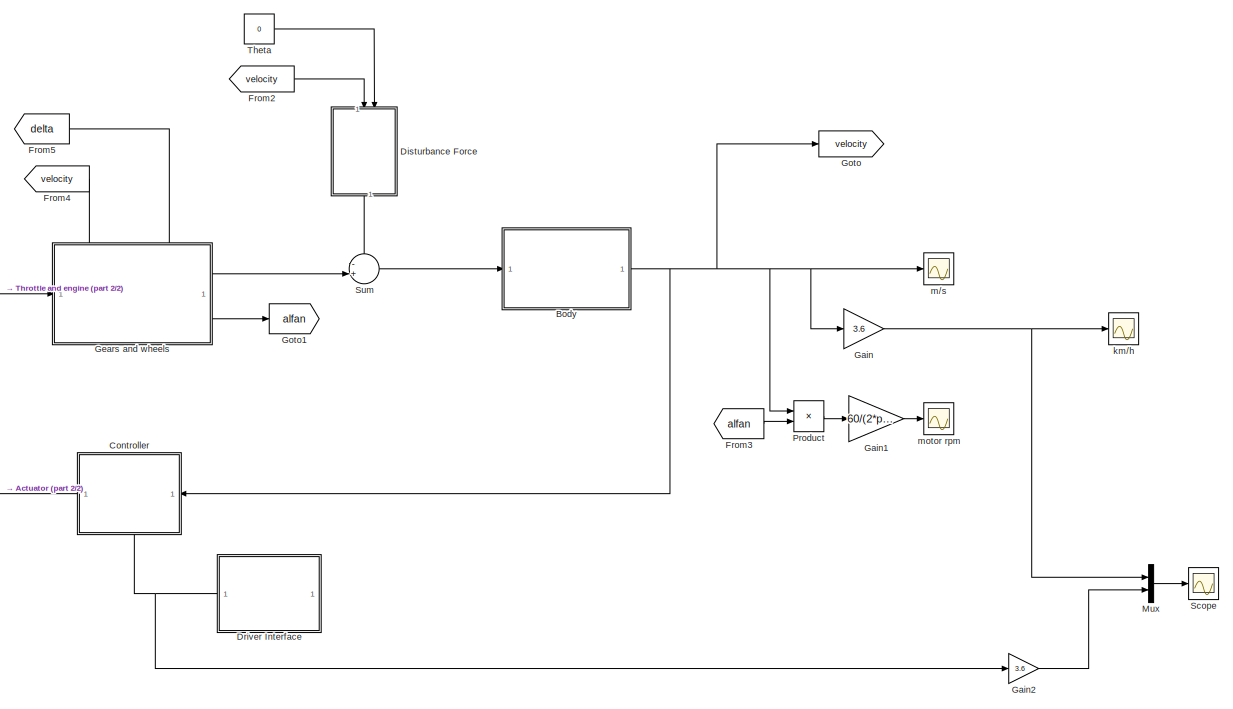
[diagram: root canvas - part 1/2, center side, full height]
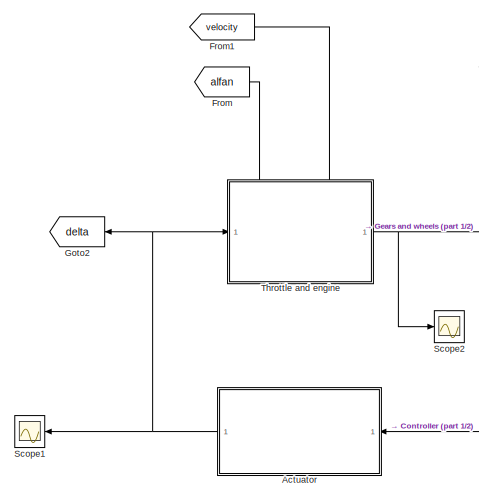
[diagram: root canvas - part 2/2, middle left region]
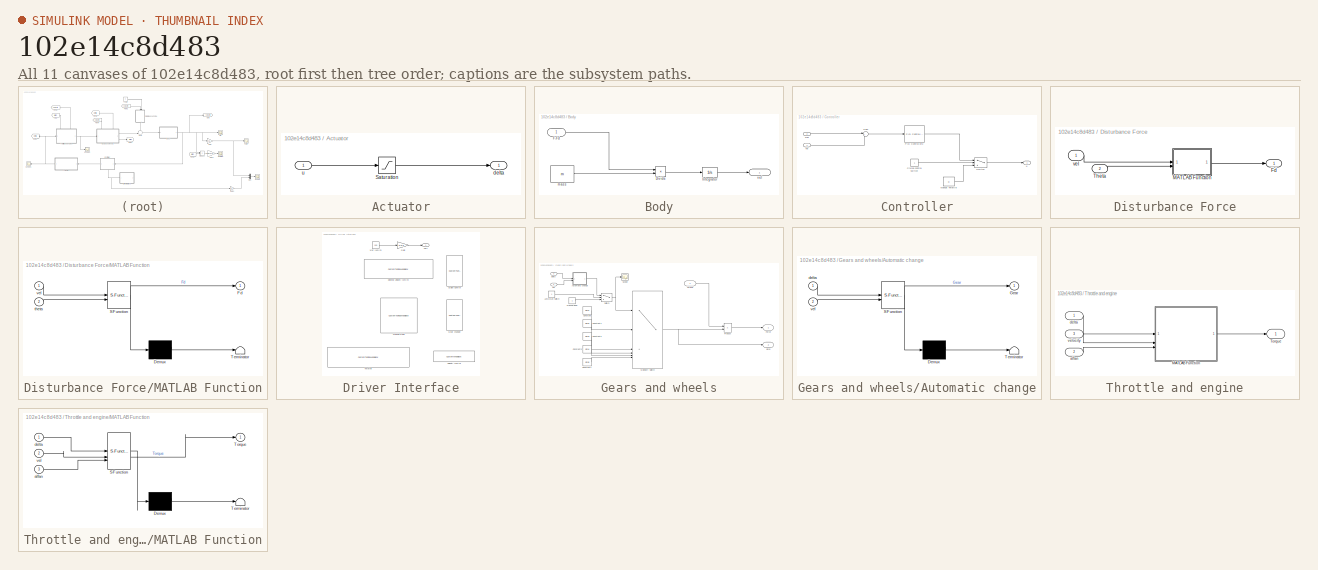
[diagram: thumbnail index - all 11 canvases of the model, root first then tree order]
MODEL slx_102e14c8d483
KIND model
CONFIG AbsTol = auto
CONFIG EnableMultiTasking = off
CONFIG FixedStep = auto
CONFIG MaxStep = auto
CONFIG MinStep = auto
CONFIG RelTol = 1e-3
CONFIG SampleTimeConstraint = Unconstrained
CONFIG SolverName = ode45
CONFIG StartTime = 0.0
CONFIG StopTime = 250
BLOCK [SubSystem] Actuator
  NameLocation = top
BLOCK [Saturate] Actuator/Saturation
  LowerLimit = 0
  UpperLimit = 1
BLOCK [Outport] Actuator/delta
BLOCK [Inport] Actuator/u
BLOCK [SubSystem] Body
BLOCK [Product] Body/Divide
  Inputs = */
BLOCK [Inport] Body/F-Fd
BLOCK [Integrator] Body/Integrator
BLOCK [Constant] Body/mass
  Value = m
BLOCK [Outport] Body/vel
BLOCK [SubSystem] Controller
  NameLocation = top
  PortSchema = {"entries":[{"content":{"sides":[{"content":{"connectorIds":["In1"]},"type":"ConnectorPlacement.EquallySpacedRectSide","uuid":"815a8116-67e3-4a02-82b8-981e60629451"},{"content":{"connectorIds":["Out1"],"side":"RIGHT"},"type":"ConnectorPlacement.EquallySpacedRectSide","uuid":"1dae2179-9fb3-4c97-8f3b-f0bd153ebc00"},{"content":{"side":"TOP"},"type":"ConnectorPlacement.EquallySpacedRectSide","uuid":"4...<+371ch>
BLOCK [Constant] Controller/Cruise control switch
BLOCK [Constant] Controller/Manual Throttle
  Value = 0
BLOCK [Reference] Controller/PID Controller2  REF=slpidlib/PID Controller
  LibrarySourceBlock = simulink/Continuous/PID Controller
  SourceBlock = slpidlib/PID Controller
  SourceType = PID 1dof
BLOCK [Sum] Controller/Sum
  Inputs = |+-
BLOCK [Switch] Controller/Switch
  Criteria = u2 ~= 0
  InputSameDT = off
  SaturateOnIntegerOverflow = off
  Threshold = 0.5
BLOCK [Outport] Controller/u
BLOCK [Inport] Controller/vel
BLOCK [Inport] Controller/vref
  Port = 2
BLOCK [SubSystem] Disturbance Force
  NameLocation = left
BLOCK [Outport] Disturbance Force/Fd
BLOCK [SubSystem] Disturbance Force/MATLAB Function
  ErrorFcn = Stateflow.Translate.translate
  PermitHierarchicalResolution = ExplicitOnly
  SFBlockType = MATLAB Function
  TreatAsAtomicUnit = on
BLOCK [Demux] Disturbance Force/MATLAB Function/ Demux 
  Outputs = 1
BLOCK [S-Function] Disturbance Force/MATLAB Function/ SFunction 
  EnableBusSupport = on
  FunctionName = sf_sfun
  PortCounts = [2 2]
  SFcnIsStateOwnerBlock = off
  SFunctionDeploymentMode = off
  Tag = Stateflow S-Function 3
BLOCK [Terminator] Disturbance Force/MATLAB Function/ Terminator 
BLOCK [Outport] Disturbance Force/MATLAB Function/Fd
  VectorParamsAs1DForOutWhenUnconnected = off
BLOCK [Inport] Disturbance Force/MATLAB Function/theta
  Port = 2
BLOCK [Inport] Disturbance Force/MATLAB Function/vel
BLOCK [Inport] Disturbance Force/Theta
  Port = 2
BLOCK [Inport] Disturbance Force/vel
BLOCK [SubSystem] Driver Interface
  NameLocation = top
BLOCK [CustomTuningWebBlock] Driver Interface/Cruise Control
  Configuration = {"components":[{"name":"CustomSwitchStateComponent","settings":{"position":[0,0,1,1],"showAllLabels":1,"states":[{"HitRegion":{"position":[0.5,0,1,0.5]},"Image":{"position":[0,0.24928571428571428,0.5014285714285714,1],"size":[0.5014285714285714,1],"src":"data:image\/svg+xml;base64,PHN2ZyB4bWxucz0iaHR0cDovL3d3dy53My5vcmcvMjAwMC9zdmciIHhtbG5zOnhsaW5rPSJodHRwOi8vd3d3LnczLm9yZy8xOTk5L3hsaW5rIiB2aWV3Qm...<+9166ch>
  LabelPosition = Hide
  ShowInitialText = on
BLOCK [CustomTuningWebBlock] Driver Interface/Desired Velocity [km//h]
  Configuration = {"components":[{"name":"LinearScaleComponent","settings":{"bounds":{"max":100,"min":0,"tickInterval":"auto"},"internalTickHeightScaleFactor":0.5,"labelColor":[255,255,200],"labelFont":{"font":"Arial","fontSize":12},"labelOffset":0.05,"labelTransparency":1,"needleImage":{"size":[596,842],"src":"data:image\/svg+xml;base64,PD94bWwgdmVyc2lvbj0iMS4wIiBlbmNvZGluZz0idXRmLTgiPz4NCjwhLS0gR2VuZXJhdG9yOiBBZG...<+5490ch>
  LabelPosition = Hide
  ShowInitialText = on
BLOCK [Gain] Driver Interface/Gain
  Gain = 1/3.6
BLOCK [CustomTuningWebBlock] Driver Interface/Gear change
  Configuration = {"components":[{"name":"CustomSwitchStateComponent","settings":{"position":[0,0,1,1],"showAllLabels":1,"states":[{"HitRegion":{"position":[0.5,0,1,0.5]},"Image":{"position":[0,0.24928571428571428,0.5014285714285714,1],"size":[0.5014285714285714,1],"src":"data:image\/svg+xml;base64,PHN2ZyB4bWxucz0iaHR0cDovL3d3dy53My5vcmcvMjAwMC9zdmciIHhtbG5zOnhsaW5rPSJodHRwOi8vd3d3LnczLm9yZy8xOTk5L3hsaW5rIiB2aWV3Qm...<+9176ch>
  LabelPosition = Hide
  ShowInitialText = on
BLOCK [CustomTuningWebBlock] Driver Interface/Manual Gear
  Configuration = {"components":[{"name":"RotarySwitchComponent","settings":{"arcAngle":300,"arcAngleOffset":120,"handle":{"size":[150,150],"src":"data:image\/svg+xml;base64,PHN2ZyBpZD0iTGF5ZXJfMSIgZGF0YS1uYW1lPSJMYXllciAxIiB4bWxucz0iaHR0cDovL3d3dy53My5vcmcvMjAwMC9zdmciIHhtbG5zOnhsaW5rPSJodHRwOi8vd3d3LnczLm9yZy8xOTk5L3hsaW5rIiB2aWV3Qm94PSIwIDAgMTIxIDEyMSI+PGRlZnM+PHN0eWxlPi5jbHMtMXtmaWxsOnVybCgjbGluZWFyLWdyYWRpZW50...<+18355ch>
  LabelPosition = Hide
  ShowInitialText = on
BLOCK [CustomTuningWebBlock] Driver Interface/Throttle
  Configuration = {"components":[{"name":"LinearScaleComponent","settings":{"bounds":{"max":1,"min":0,"tickInterval":"auto"},"internalTickHeightScaleFactor":0.5,"labelColor":[255,255,200],"labelFont":{"font":"Arial","fontSize":12},"labelOffset":0.05,"labelTransparency":1,"needleImage":{"size":[596,842],"src":"data:image\/svg+xml;base64,PD94bWwgdmVyc2lvbj0iMS4wIiBlbmNvZGluZz0idXRmLTgiPz4NCjwhLS0gR2VuZXJhdG9yOiBBZG9i...<+5488ch>
  LabelPosition = Hide
  ShowInitialText = on
BLOCK [CustomWebBlock] Driver Interface/Velocity [km//h]
  Configuration = {"components":[{"name":"DisplayComponent","settings":{"bold":false,"font":"DSEG7 Classic","fontColor":[255,255,200],"fontSize":"14","format":"short","formatString":"%d","italic":false,"position":[0,0,1,1],"underline":false}},{"name":"BackgroundImageComponent","settings":{"image":{"size":[300,80],"src":"data:image\/svg+xml;base64,PHN2ZyBpZD0iZnJhbWUiIHhtbG5zPSJodHRwOi8vd3d3LnczLm9yZy8yMDAwL3N2ZyIge...<+1637ch>
  LabelPosition = Hide
  ShowInitialText = on
BLOCK [Outport] Driver Interface/verf
BLOCK [Constant] Driver Interface/vref [km//h]
  SampleTime = 0.1
  Value = 100
BLOCK [From] From
  GotoTag = alfan
BLOCK [From] From1
  GotoTag = velocity
BLOCK [From] From2
  GotoTag = velocity
BLOCK [From] From3
  GotoTag = alfan
BLOCK [From] From4
  GotoTag = velocity
BLOCK [From] From5
  GotoTag = delta
  NameLocation = top
BLOCK [Gain] Gain
  Gain = 3.6
BLOCK [Gain] Gain1
  Gain = 60/(2*pi)
BLOCK [Gain] Gain2
  Gain = 3.6
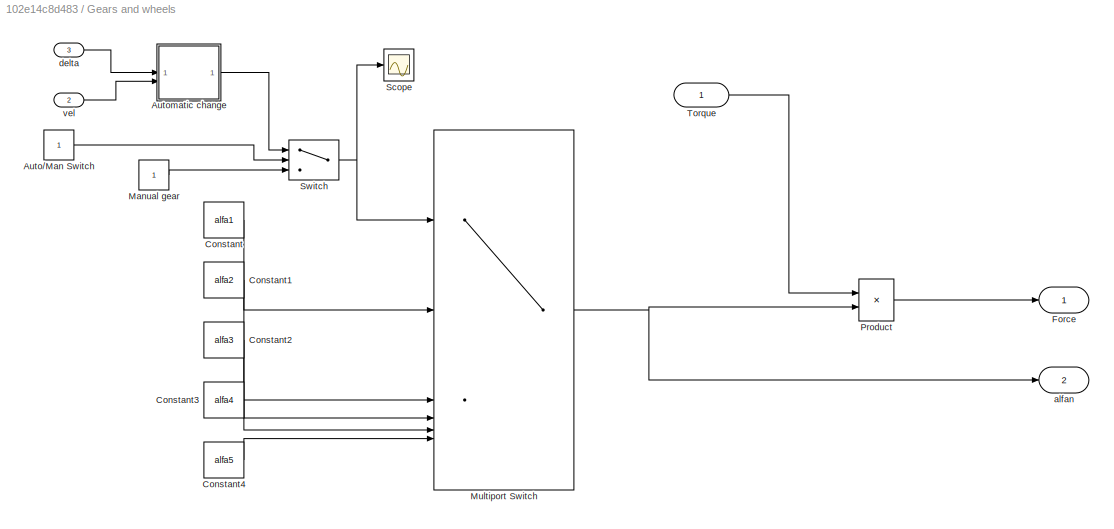
BLOCK [SubSystem] Gears and wheels
  PortSchema = {"entries":[{"content":{"sides":[{"content":{"connectorIds":["In1"]},"type":"ConnectorPlacement.EquallySpacedRectSide","uuid":"f01132aa-ae65-48b1-9593-a40f4dadf77d"},{"content":{"connectorIds":["Out1","Out2"],"side":"RIGHT"},"type":"ConnectorPlacement.EquallySpacedRectSide","uuid":"e47514dc-ddd4-444e-83cf-5b671ddd4ef4"},{"content":{"connectorIds":["In2","In3"],"side":"TOP"},"type":"ConnectorPlacem...<+258ch>
BLOCK [Constant] Gears and wheels/Auto//Man Switch
BLOCK [SubSystem] Gears and wheels/Automatic change
  ErrorFcn = Stateflow.Translate.translate
  PermitHierarchicalResolution = ExplicitOnly
  SFBlockType = Chart
  TreatAsAtomicUnit = on
BLOCK [Demux] Gears and wheels/Automatic change/ Demux 
  Outputs = 1
BLOCK [S-Function] Gears and wheels/Automatic change/ SFunction 
  EnableBusSupport = on
  FunctionName = sf_sfun
  PortCounts = [2 2]
  SFcnIsStateOwnerBlock = off
  SFunctionDeploymentMode = off
  Tag = Stateflow S-Function 1
BLOCK [Terminator] Gears and wheels/Automatic change/ Terminator 
BLOCK [Outport] Gears and wheels/Automatic change/Gear
BLOCK [Inport] Gears and wheels/Automatic change/delta
BLOCK [Inport] Gears and wheels/Automatic change/vel
  Port = 2
BLOCK [Constant] Gears and wheels/Constant
  Value = alfa1
BLOCK [Constant] Gears and wheels/Constant1
  Value = alfa2
BLOCK [Constant] Gears and wheels/Constant2
  Value = alfa3
BLOCK [Constant] Gears and wheels/Constant3
  Value = alfa4
BLOCK [Constant] Gears and wheels/Constant4
  Value = alfa5
BLOCK [Outport] Gears and wheels/Force
BLOCK [Constant] Gears and wheels/Manual gear
BLOCK [MultiPortSwitch] Gears and wheels/Multiport Switch
  InputSameDT = off
  Inputs = 5
  SaturateOnIntegerOverflow = off
BLOCK [Product] Gears and wheels/Product
BLOCK [Scope] Gears and wheels/Scope
  Floating = off
  NumInputPorts = 1
  ScopeSpecificationString = Simulink.scopes.TimeScopeBlockCfg('CurrentConfiguration', extmgr.ConfigurationSet(extmgr.Configuration('Core','General UI',true),extmgr.Configuration('Core','Source UI',true),extmgr.Configuration('Sources','WiredSimulink',true,'DataLoggingVariableName','gears','DataLogging',true,'DataLoggingSaveFormat','StructureWithTime'),extmgr.Configuration('Visuals','Time Domain',true,'SerializedDisplays',{str...<+1416ch>
BLOCK [Switch] Gears and wheels/Switch
  Criteria = u2 ~= 0
  InputSameDT = off
  SaturateOnIntegerOverflow = off
BLOCK [Inport] Gears and wheels/Torque
BLOCK [Outport] Gears and wheels/alfan
  Port = 2
BLOCK [Inport] Gears and wheels/delta
  Port = 3
BLOCK [Inport] Gears and wheels/vel
  Port = 2
BLOCK [Goto] Goto
  GotoTag = velocity
BLOCK [Goto] Goto1
  GotoTag = alfan
BLOCK [Goto] Goto2
  GotoTag = delta
  NameLocation = top
BLOCK [Mux] Mux
  DisplayOption = bar
  Inputs = 2
BLOCK [Product] Product
BLOCK [Scope] Scope
  Floating = off
  NumInputPorts = 1
  ScopeSpecificationString = Simulink.scopes.TimeScopeBlockCfg('CurrentConfiguration', extmgr.ConfigurationSet(extmgr.Configuration('Core','General UI',true),extmgr.Configuration('Core','Source UI',true),extmgr.Configuration('Sources','WiredSimulink',true,'DataLoggingVariableName','response','DataLogging',true,'DataLoggingSaveFormat','StructureWithTime'),extmgr.Configuration('Visuals','Time Domain',true,'SerializedDisplays',{...<+1486ch>
BLOCK [Scope] Scope1
  Floating = off
  NameLocation = top
  NumInputPorts = 1
  ScopeSpecificationString = Simulink.scopes.TimeScopeBlockCfg('CurrentConfiguration', extmgr.ConfigurationSet(extmgr.Configuration('Core','General UI',true),extmgr.Configuration('Core','Source UI',true),extmgr.Configuration('Sources','WiredSimulink',true,'DataLoggingVariableName','input','DataLogging',true,'DataLoggingSaveFormat','StructureWithTime'),extmgr.Configuration('Visuals','Time Domain',true,'SerializedDisplays',{str...<+1484ch>
BLOCK [Scope] Scope2
  Floating = off
  NumInputPorts = 1
  ScopeSpecificationString = Simulink.scopes.TimeScopeBlockCfg('CurrentConfiguration', extmgr.ConfigurationSet(extmgr.Configuration('Core','General UI',true),extmgr.Configuration('Core','Source UI',true),extmgr.Configuration('Sources','WiredSimulink',true),extmgr.Configuration('Visuals','Time Domain',true,'SerializedDisplays',{struct('MinYLimReal','-24.99872','MaxYLimReal','224.9885','YLabelReal','','MinYLimMag','0.00000','Ma...<+1399ch>
BLOCK [Sum] Sum
  Inputs = -+|
BLOCK [Constant] Theta
  Value = 0
BLOCK [SubSystem] Throttle and engine
  PortSchema = {"entries":[{"content":{"sides":[{"content":{"connectorIds":["In1"]},"type":"ConnectorPlacement.EquallySpacedRectSide","uuid":"397f244c-8194-4aef-8985-f671201af3c3"},{"content":{"connectorIds":["Out1"],"side":"RIGHT"},"type":"ConnectorPlacement.EquallySpacedRectSide","uuid":"9f5999d7-4a95-4dff-848c-9e50ba67840b"},{"content":{"connectorIds":["In2","In3"],"side":"TOP"},"type":"ConnectorPlacement.Equ...<+251ch>
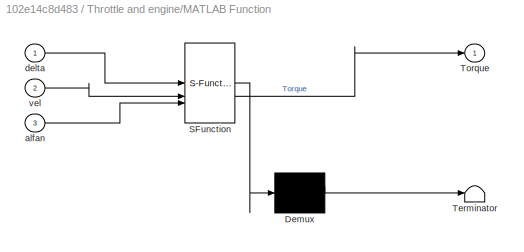
BLOCK [SubSystem] Throttle and engine/MATLAB Function
  ErrorFcn = Stateflow.Translate.translate
  PermitHierarchicalResolution = ExplicitOnly
  SFBlockType = MATLAB Function
  TreatAsAtomicUnit = on
BLOCK [Demux] Throttle and engine/MATLAB Function/ Demux 
  Outputs = 1
BLOCK [S-Function] Throttle and engine/MATLAB Function/ SFunction 
  EnableBusSupport = on
  FunctionName = sf_sfun
  PortCounts = [3 2]
  SFcnIsStateOwnerBlock = off
  SFunctionDeploymentMode = off
  Tag = Stateflow S-Function 2
BLOCK [Terminator] Throttle and engine/MATLAB Function/ Terminator 
BLOCK [Outport] Throttle and engine/MATLAB Function/Torque
  VectorParamsAs1DForOutWhenUnconnected = off
BLOCK [Inport] Throttle and engine/MATLAB Function/alfan
  Port = 3
BLOCK [Inport] Throttle and engine/MATLAB Function/delta
BLOCK [Inport] Throttle and engine/MATLAB Function/vel
  Port = 2
BLOCK [Outport] Throttle and engine/Torque
BLOCK [Inport] Throttle and engine/alfan
  Port = 2
BLOCK [Inport] Throttle and engine/delta
BLOCK [Inport] Throttle and engine/velocity
  Port = 3
BLOCK [Scope] km//h
  Floating = off
  NumInputPorts = 1
  ScopeSpecificationString = Simulink.scopes.TimeScopeBlockCfg('CurrentConfiguration', extmgr.ConfigurationSet(extmgr.Configuration('Core','General UI',true),extmgr.Configuration('Core','Source UI',true),extmgr.Configuration('Sources','WiredSimulink',true,'DataLoggingVariableName','ScopeData3'),extmgr.Configuration('Visuals','Time Domain',true,'SerializedDisplays',{struct('MinYLimReal','-12.5','MaxYLimReal','112.5','YLabelRea...<+1349ch>
BLOCK [Scope] m//s
  Floating = off
  NumInputPorts = 1
  ScopeSpecificationString = Simulink.scopes.TimeScopeBlockCfg('CurrentConfiguration', extmgr.ConfigurationSet(extmgr.Configuration('Core','General UI',true),extmgr.Configuration('Core','Source UI',true),extmgr.Configuration('Sources','WiredSimulink',true,'DataLoggingVariableName','ScopeData1'),extmgr.Configuration('Visuals','Time Domain',true,'SerializedDisplays',{struct('MinYLimReal','-0.25795','MaxYLimReal','29.16717','YLa...<+1438ch>
BLOCK [Scope] motor rpm
  Floating = off
  NumInputPorts = 1
  ScopeSpecificationString = Simulink.scopes.TimeScopeBlockCfg('CurrentConfiguration', extmgr.ConfigurationSet(extmgr.Configuration('Core','General UI',true),extmgr.Configuration('Core','Source UI',true),extmgr.Configuration('Sources','WiredSimulink',true,'DataLoggingVariableName','rpm','DataLogging',true,'DataLoggingSaveFormat','StructureWithTime'),extmgr.Configuration('Visuals','Time Domain',true,'SerializedDisplays',{struc...<+1517ch>
LINE Actuator/Saturation:1 -> Actuator/delta:1
LINE Actuator/u:1 -> Actuator/Saturation:1
NET Actuator:1 -> Goto2:1, Scope1:1, Throttle and engine:1
LINE Body/Divide:1 -> Body/Integrator:1
LINE Body/F-Fd:1 -> Body/Divide:1
LINE Body/Integrator:1 -> Body/vel:1
LINE Body/mass:1 -> Body/Divide:2
NET Body:1 -> Controller:1, Gain:1, Goto:1, Product:1, m//s:1
LINE Controller/Cruise control switch:1 -> Controller/Switch:2
LINE Controller/Manual Throttle:1 -> Controller/Switch:3
LINE Controller/PID Controller2:1 -> Controller/Switch:1
LINE Controller/Sum:1 -> Controller/PID Controller2:1
LINE Controller/Switch:1 -> Controller/u:1
LINE Controller/vel:1 -> Controller/Sum:2
LINE Controller/vref:1 -> Controller/Sum:1
LINE Controller:1 -> Actuator:1
LINE Disturbance Force/MATLAB Function:1 -> Disturbance Force/Fd:1
LINE Disturbance Force/Theta:1 -> Disturbance Force/MATLAB Function:2
LINE Disturbance Force/vel:1 -> Disturbance Force/MATLAB Function:1
LINE Disturbance Force:1 -> Sum:1
LINE Driver Interface/Gain:1 -> Driver Interface/verf:1
LINE Driver Interface/vref [km//h]:1 -> Driver Interface/Gain:1
NET Driver Interface:1 -> Controller:2, Gain2:1
LINE From1:1 -> Throttle and engine:3
LINE From2:1 -> Disturbance Force:1
LINE From3:1 -> Product:2
LINE From4:1 -> Gears and wheels:2
LINE From5:1 -> Gears and wheels:3
LINE From:1 -> Throttle and engine:2
LINE Gain1:1 -> motor rpm:1
LINE Gain2:1 -> Mux:2
NET Gain:1 -> Mux:1, km//h:1
LINE Gears and wheels/Auto//Man Switch:1 -> Gears and wheels/Switch:2
LINE Gears and wheels/Automatic change:1 -> Gears and wheels/Switch:1
LINE Gears and wheels/Constant1:1 -> Gears and wheels/Multiport Switch:3
LINE Gears and wheels/Constant2:1 -> Gears and wheels/Multiport Switch:4
LINE Gears and wheels/Constant3:1 -> Gears and wheels/Multiport Switch:5
LINE Gears and wheels/Constant4:1 -> Gears and wheels/Multiport Switch:6
LINE Gears and wheels/Constant:1 -> Gears and wheels/Multiport Switch:2
LINE Gears and wheels/Manual gear:1 -> Gears and wheels/Switch:3
NET Gears and wheels/Multiport Switch:1 -> Gears and wheels/Product:2, Gears and wheels/alfan:1
LINE Gears and wheels/Product:1 -> Gears and wheels/Force:1
NET Gears and wheels/Switch:1 -> Gears and wheels/Multiport Switch:1, Gears and wheels/Scope:1
LINE Gears and wheels/Torque:1 -> Gears and wheels/Product:1
LINE Gears and wheels/delta:1 -> Gears and wheels/Automatic change:1
LINE Gears and wheels/vel:1 -> Gears and wheels/Automatic change:2
LINE Gears and wheels:1 -> Sum:2
LINE Gears and wheels:2 -> Goto1:1
LINE Mux:1 -> Scope:1
LINE Product:1 -> Gain1:1
LINE Sum:1 -> Body:1
LINE Theta:1 -> Disturbance Force:2
LINE Throttle and engine/MATLAB Function:1 -> Throttle and engine/Torque:1
LINE Throttle and engine/alfan:1 -> Throttle and engine/MATLAB Function:3
LINE Throttle and engine/delta:1 -> Throttle and engine/MATLAB Function:1
LINE Throttle and engine/velocity:1 -> Throttle and engine/MATLAB Function:2
NET Throttle and engine:1 -> Gears and wheels:1, Scope2:1
note: NET lines group one-source signal fan-out (src -> all destinations, sorted); 1:1 wires keep LINE
CHART Disturbance Force/MATLAB Function states=1 transitions=1
  STATE_LABEL 'eML_blk_kernel()'
  STATE_LABEL 'SCRIPT:\nfunction Fd = fcn(vel,theta)\n\n% Parametrs\n\nm       =   1200;    % Kg\ng       =   9.81;    % m/s^2\nCr      =   0.01;\nrho     =   1.3;     % kg/m^2\nCd      =   0.36;\nA       =   2.2;     % m^2 \n\n% Forces\n\n\nFd1 =   m*g*sin(theta);\n\nFd2 =   m*g*Cr*cos(theta)*sign(vel);\n\nFd3 =   1/2*rho*Cd*A*vel^2;\n\n\n\nFd = Fd1+Fd2+Fd3;'
CHART Gears and wheels/Automatic change states=9 transitions=9
  STATE_LABEL 'a=t1(delta)'
  STATE_LABEL 'SCRIPT:\nfunction a=t1(delta)\n\n% UP1/DOWN2\n\na=10.1042*delta^3+8.1875*delta^2-2.3917*delta+4.5;\n\n\nend\n\n\n\n\n\n\n\n\n'
  STATE_LABEL 'b=t2(delta)'
  STATE_LABEL 'SCRIPT:\nfunction b=t2(delta)\n% UP2/DOWN3\n\nb=52.3958*delta^3-36.9375*delta^2+8.1417*delta+5.3;\n\nend\n'
  STATE_LABEL 'c=t3(delta)'
  STATE_LABEL 'SCRIPT:\nfunction c=t3(delta)\n% UP3/DOWN4\n\nc=42.6042*delta^3+5.4375*delta^2-5.2417*delta+11.6;\n\nend\n'
  STATE_LABEL 'd=t4(delta)'
  STATE_LABEL 'SCRIPT:\n\nfunction d=t4(delta)\n\n% UP4/DOWN5\n\nd=30.4687*delta^3+38.8438*delta^2-15.4125*delta+15.5;\n\nend'
  STATE_LABEL 'Second\n\nGear=2;\n'
  STATE_LABEL 'Third\n\nGear=3;\n'
  STATE_LABEL ' First\n\nGear=1;\n'
  STATE_LABEL 'Fifth\n\nGear=5;\n'
  STATE_LABEL 'Fourth\n\nGear=4;\n'
CHART Throttle and engine/MATLAB Function states=1 transitions=1
  STATE_LABEL 'eML_blk_kernel()'
  STATE_LABEL 'SCRIPT:\nfunction Torque = fcn(delta,vel,alfan)\n% Parametrs\n\nTm      =   200;     % Nm\nwm      =   450;     % rad/s\nbeta    =   0.35;\n\n\nw=vel*alfan;\n\n\nTorque = delta*Tm*(1-beta*(w/wm-1)^2);'
CHART  states=0 transitions=0
CHART  states=0 transitions=0
CHART  states=0 transitions=0
